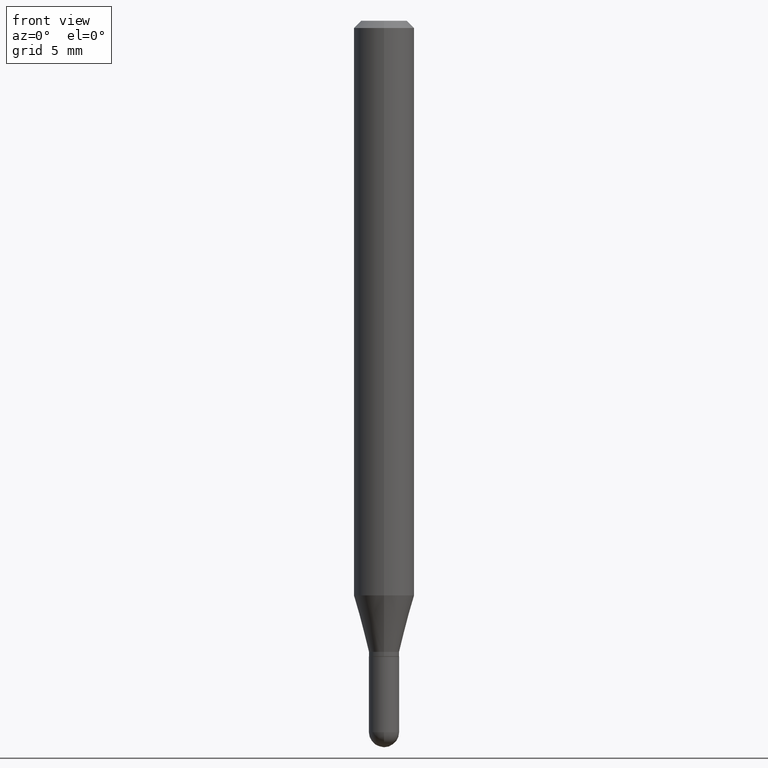
[diagram: clean part render]
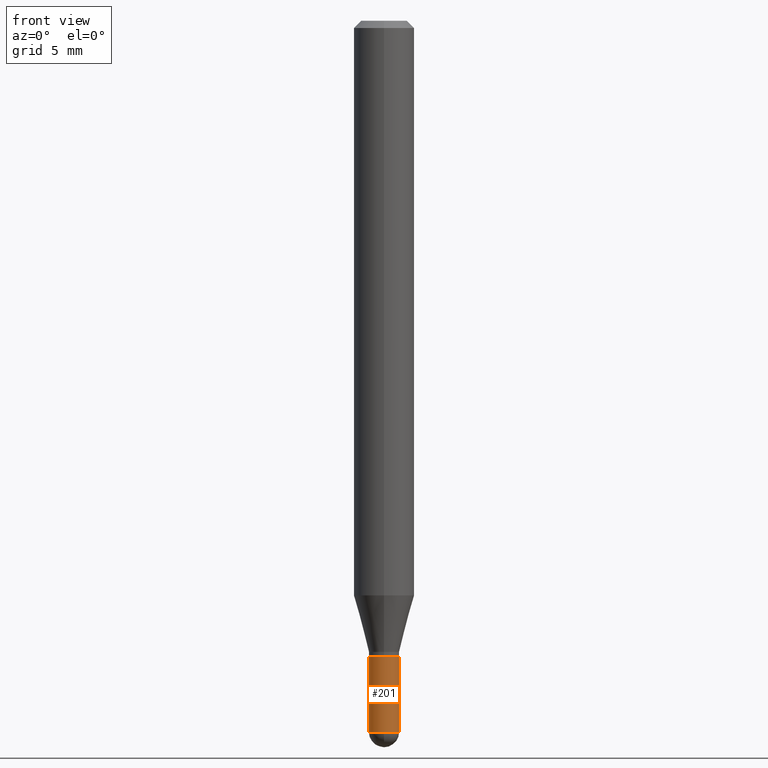
[diagram: same view with one face highlighted and labeled with its STEP entity id]
A machine part, front view. The second image highlights one B-rep face of the part: STEP entity #201.
In plain terms, the highlighted cylindrical surface (edge-blend (fillet) strip) has radius 0.7937 mm, axis along (-0, 0, 1).
Its self-contained STEP definition (entity closure, byte-faithful):
#15 = ORIENTED_EDGE ( 'NONE', *, *, #91, .T. ) ;
#20 = CARTESIAN_POINT ( 'NONE',  ( 3.210900542521084585E-29, -4.584314997901050598E-15, -1.313000000000000167 ) ) ;
#51 = VERTEX_POINT ( 'NONE', #420 ) ;
#59 = VECTOR ( 'NONE', #120, 39.37007874015748143 ) ;
#70 = DIRECTION ( 'NONE',  ( 1.000000000000000000, -6.982962677686261189E-15, 0.000000000000000000 ) ) ;
#78 = ORIENTED_EDGE ( 'NONE', *, *, #206, .F. ) ;
#91 = EDGE_CURVE ( 'NONE', #51, #287, #308, .T. ) ;
#96 = DIRECTION ( 'NONE',  ( -2.445468806185136877E-29, 3.491481338843145188E-15, 1.000000000000000000 ) ) ;
#102 = CIRCLE ( 'NONE', #285, 0.03125000000000000000 ) ;
#120 = DIRECTION ( 'NONE',  ( -2.445468806185136877E-29, 3.491481338843145188E-15, 1.000000000000000000 ) ) ;
#132 = LINE ( 'NONE', #445, #398 ) ;
#135 = CARTESIAN_POINT ( 'NONE',  ( 0.03125000000000000694, -5.074431690841155672E-15, -1.468750000000000000 ) ) ;
#166 = CARTESIAN_POINT ( 'NONE',  ( -0.03125000000000000000, 2.220446049250313081E-16, -1.537167215704658057E-30 ) ) ;
#173 = ORIENTED_EDGE ( 'NONE', *, *, #298, .T. ) ;
#179 = EDGE_CURVE ( 'NONE', #245, #51, #325, .T. ) ;
#190 = DIRECTION ( 'NONE',  ( 1.000000000000000000, -6.982962677686261189E-15, 0.000000000000000000 ) ) ;
#198 = EDGE_LOOP ( 'NONE', ( #448, #264, #15, #173, #78 ) ) ;
#201 = ADVANCED_FACE ( 'NONE', ( #415 ), #291, .T. ) ;
#206 = EDGE_CURVE ( 'NONE', #400, #412, #102, .T. ) ;
#218 = CARTESIAN_POINT ( 'NONE',  ( 0.000000000000000000, 0.000000000000000000, 0.000000000000000000 ) ) ;
#223 = DIRECTION ( 'NONE',  ( 1.000000000000000000, -6.982962677686266711E-15, 4.876176775795935793E-29 ) ) ;
#245 = VERTEX_POINT ( 'NONE', #355 ) ;
#256 = AXIS2_PLACEMENT_3D ( 'NONE', #295, #257, #190 ) ;
#257 = DIRECTION ( 'NONE',  ( -2.445468806185136597E-29, 3.491481338843145583E-15, 1.000000000000000000 ) ) ;
#264 = ORIENTED_EDGE ( 'NONE', *, *, #179, .T. ) ;
#269 = CARTESIAN_POINT ( 'NONE',  ( 3.591782309084418816E-29, -5.128113216425869865E-15, -1.468750000000000000 ) ) ;
#285 = AXIS2_PLACEMENT_3D ( 'NONE', #20, #455, #292 ) ;
#287 = VERTEX_POINT ( 'NONE', #135 ) ;
#291 = CYLINDRICAL_SURFACE ( 'NONE', #443, 0.03125000000000000000 ) ;
#292 = DIRECTION ( 'NONE',  ( 1.000000000000000000, -6.982962677686262766E-15, 0.000000000000000000 ) ) ;
#295 = CARTESIAN_POINT ( 'NONE',  ( 3.591782309084418816E-29, -5.128113216425869865E-15, -1.468750000000000000 ) ) ;
#298 = EDGE_CURVE ( 'NONE', #287, #412, #132, .T. ) ;
#308 = CIRCLE ( 'NONE', #442, 0.03125000000000000694 ) ;
#325 = CIRCLE ( 'NONE', #256, 0.03125000000000000694 ) ;
#333 = DIRECTION ( 'NONE',  ( -2.445468806185136597E-29, 3.491481338843145583E-15, 1.000000000000000000 ) ) ;
#345 = CARTESIAN_POINT ( 'NONE',  ( 0.03125000000000000000, -4.802532581578746433E-15, -1.313000000000000167 ) ) ;
#355 = CARTESIAN_POINT ( 'NONE',  ( -0.03125000000000000694, -4.634169502238429318E-15, -1.468750000000000000 ) ) ;
#390 = CARTESIAN_POINT ( 'NONE',  ( -0.03125000000000000000, -4.634169502238429318E-15, -1.313000000000000167 ) ) ;
#391 = EDGE_CURVE ( 'NONE', #245, #400, #468, .T. ) ;
#398 = VECTOR ( 'NONE', #96, 39.37007874015748143 ) ;
#400 = VERTEX_POINT ( 'NONE', #390 ) ;
#412 = VERTEX_POINT ( 'NONE', #345 ) ;
#415 = FACE_OUTER_BOUND ( 'NONE', #198, .T. ) ;
#420 = CARTESIAN_POINT ( 'NONE',  ( -2.182175836776606071E-16, -0.03125000000000523193, -1.468750000000000000 ) ) ;
#426 = DIRECTION ( 'NONE',  ( -2.445468806185136597E-29, 3.491481338843145583E-15, 1.000000000000000000 ) ) ;
#442 = AXIS2_PLACEMENT_3D ( 'NONE', #269, #426, #70 ) ;
#443 = AXIS2_PLACEMENT_3D ( 'NONE', #218, #333, #223 ) ;
#445 = CARTESIAN_POINT ( 'NONE',  ( 0.03125000000000000000, -2.182175836776958347E-16, 1.523805242436229935E-30 ) ) ;
#448 = ORIENTED_EDGE ( 'NONE', *, *, #391, .F. ) ;
#455 = DIRECTION ( 'NONE',  ( -2.445468806185136597E-29, 3.491481338843145583E-15, 1.000000000000000000 ) ) ;
#468 = LINE ( 'NONE', #166, #59 ) ;